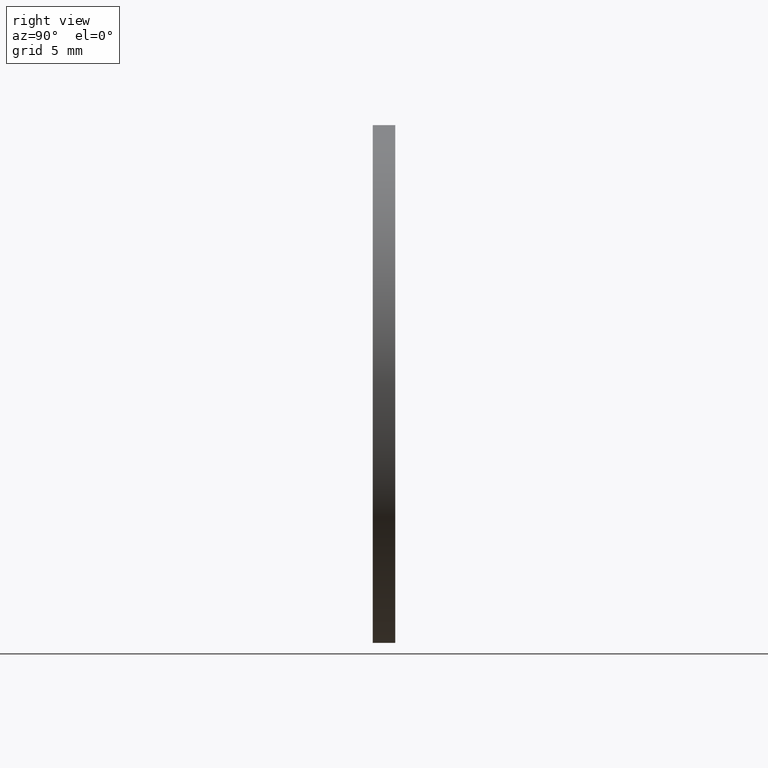
[diagram: clean part render]
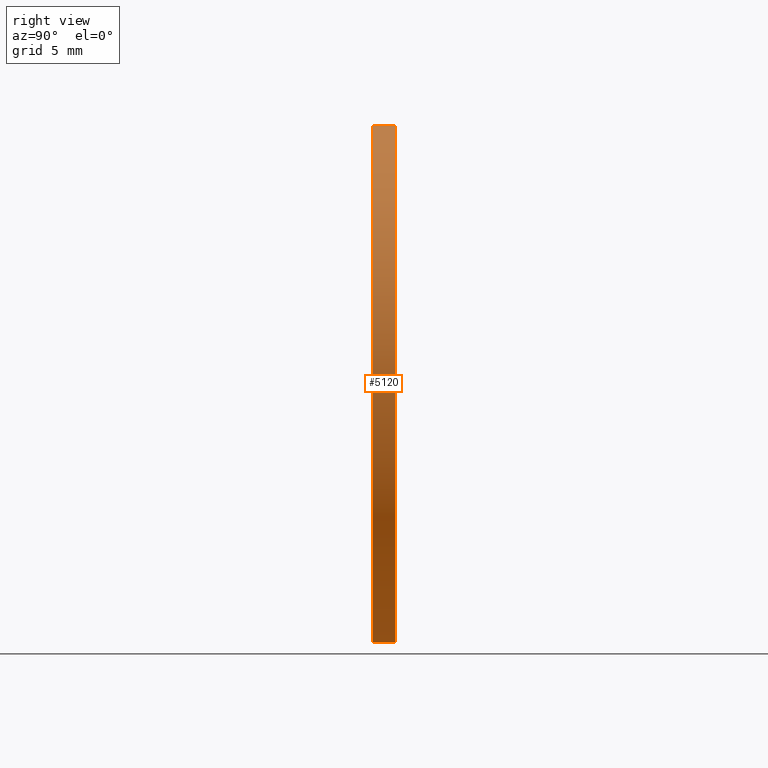
[diagram: same view with one face highlighted and labeled with its STEP entity id]
A machine part, right view. The second image highlights one B-rep face of the part: STEP entity #5120.
In plain terms, the highlighted cylindrical surface (bore or boss wall) has radius 18.4 mm, axis along (-0, -1, -0).
Its self-contained STEP definition (entity closure, byte-faithful):
#336 = CARTESIAN_POINT ( 'NONE',  ( 0.000000000000000000, 0.8000000000000000444, 0.000000000000000000 ) ) ;
#881 = CIRCLE ( 'NONE', #8547, 18.39999999999999858 ) ;
#1102 = ORIENTED_EDGE ( 'NONE', *, *, #4863, .F. ) ;
#2063 = ORIENTED_EDGE ( 'NONE', *, *, #11843, .T. ) ;
#3124 = CYLINDRICAL_SURFACE ( 'NONE', #11316, 18.39999999999999858 ) ;
#3188 = DIRECTION ( 'NONE',  ( 0.000000000000000000, 1.000000000000000000, 0.000000000000000000 ) ) ;
#3426 = FACE_OUTER_BOUND ( 'NONE', #6399, .T. ) ;
#4219 = VERTEX_POINT ( 'NONE', #4246 ) ;
#4246 = CARTESIAN_POINT ( 'NONE',  ( 0.000000000000000000, -0.8000000000000000444, 18.39999999999999858 ) ) ;
#4589 = DIRECTION ( 'NONE',  ( 0.000000000000000000, 1.000000000000000000, 0.000000000000000000 ) ) ;
#4863 = EDGE_CURVE ( 'NONE', #6732, #6732, #10441, .T. ) ;
#5120 = ADVANCED_FACE ( 'NONE', ( #9970, #3426 ), #3124, .T. ) ;
#5279 = DIRECTION ( 'NONE',  ( 0.000000000000000000, 0.000000000000000000, 1.000000000000000000 ) ) ;
#5505 = DIRECTION ( 'NONE',  ( 0.000000000000000000, 0.000000000000000000, 1.000000000000000000 ) ) ;
#5546 = DIRECTION ( 'NONE',  ( -0.000000000000000000, -1.000000000000000000, -0.000000000000000000 ) ) ;
#6399 = EDGE_LOOP ( 'NONE', ( #2063 ) ) ;
#6732 = VERTEX_POINT ( 'NONE', #10865 ) ;
#7419 = CARTESIAN_POINT ( 'NONE',  ( 0.000000000000000000, 0.8000000000000000444, 0.000000000000000000 ) ) ;
#7539 = DIRECTION ( 'NONE',  ( 0.000000000000000000, 0.000000000000000000, -1.000000000000000000 ) ) ;
#8547 = AXIS2_PLACEMENT_3D ( 'NONE', #10333, #4589, #5505 ) ;
#8885 = EDGE_LOOP ( 'NONE', ( #1102 ) ) ;
#9970 = FACE_OUTER_BOUND ( 'NONE', #8885, .T. ) ;
#10333 = CARTESIAN_POINT ( 'NONE',  ( 0.000000000000000000, -0.8000000000000000444, 0.000000000000000000 ) ) ;
#10441 = CIRCLE ( 'NONE', #10928, 18.39999999999999858 ) ;
#10865 = CARTESIAN_POINT ( 'NONE',  ( 0.000000000000000000, 0.8000000000000000444, 18.39999999999999858 ) ) ;
#10928 = AXIS2_PLACEMENT_3D ( 'NONE', #336, #3188, #5279 ) ;
#11316 = AXIS2_PLACEMENT_3D ( 'NONE', #7419, #5546, #7539 ) ;
#11843 = EDGE_CURVE ( 'NONE', #4219, #4219, #881, .T. ) ;